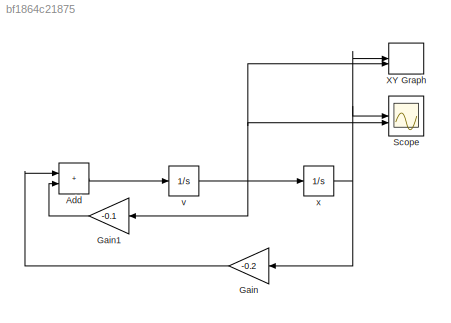
MODEL slx_bf1864c21875
KIND model
CONFIG AbsTol = auto
CONFIG EnableMultiTasking = off
CONFIG FixedStep = 0.01
CONFIG MaxStep = auto
CONFIG MinStep = auto
CONFIG RelTol = 1e-3
CONFIG SampleTimeConstraint = Unconstrained
CONFIG SolverName = ode4
CONFIG StartTime = 0.0
CONFIG StopTime = 500
BLOCK [Sum] Add
  IconShape = rectangular
BLOCK [Gain] Gain
  Gain = -0.2
BLOCK [Gain] Gain1
  Gain = -0.1
BLOCK [Scope] Scope
  Floating = off
  NumInputPorts = 2
  ScopeSpecificationString = Simulink.scopes.TimeScopeBlockCfg('CurrentConfiguration', extmgr.ConfigurationSet(extmgr.Configuration('Core','General UI',true),extmgr.Configuration('Core','Source UI',true),extmgr.Configuration('Sources','WiredSimulink',true),extmgr.Configuration('Visuals','Time Domain',true,'SerializedDisplays',{struct('MinYLimReal','-9.15038','MaxYLimReal','12.12782','YLabelReal','','MinYLimMag','0.00000','Max...<+1358ch>
BLOCK [Record] XY Graph
  CompatibilityTag = XY
  FileSettingsInternal = {"entries":[{"content":{"excelSettings":{"content":{},"type":"Streamout.ExcelSettings"}},"type":"Streamout.FileSettingStorage","uuid":"4ac3fa0b-75e7-4d30-b146-320138278237"}],"packageUris":["http://schema.mathworks.com/mf0/streamout_blocks/R2020a"],"version":"1.0"}
  Layout = [1 1]
  SignalsInternal = {"entries":[{"content":{"signals":[{"content":{"blockPath":["untitled/XY Graph"],"dimensions":[1],"domain":"untitled/XY Graph","lineColor":"#a2142f","plots":[1],"port":1,"sid":[""],"signalID":110,"signalName":"x"},"type":"RecordBlkView.Signal","uuid":"8370f782-c611-4d5c-8764-f0cb00041351"},{"content":{"blockPath":["untitled/XY Graph"],"dimensions":[1],"domain":"untitled/XY Graph","lineColor":"#139...<+323ch>
  VisualizationBindings = {"xyplotplugin":{"info":[{"series":[{"bindingParametersList":[{"parameter":"X-Axis","signalID":110,"signalName":"x"},{"parameter":"Y-Axis","signalID":114,"signalName":"v"}],"seriesID":12401}],"subplotID":1}]}}
BLOCK [Integrator] v
BLOCK [Integrator] x
  InitialCondition = 10
LINE Add:1 -> v:1
LINE Gain1:1 -> Add:2
LINE Gain:1 -> Add:1
NET v:1 -> Gain1:1, Scope:2, XY Graph:2, x:1
NET x:1 -> Gain:1, Scope:1, XY Graph:1
note: NET lines group one-source signal fan-out (src -> all destinations, sorted); 1:1 wires keep LINE
